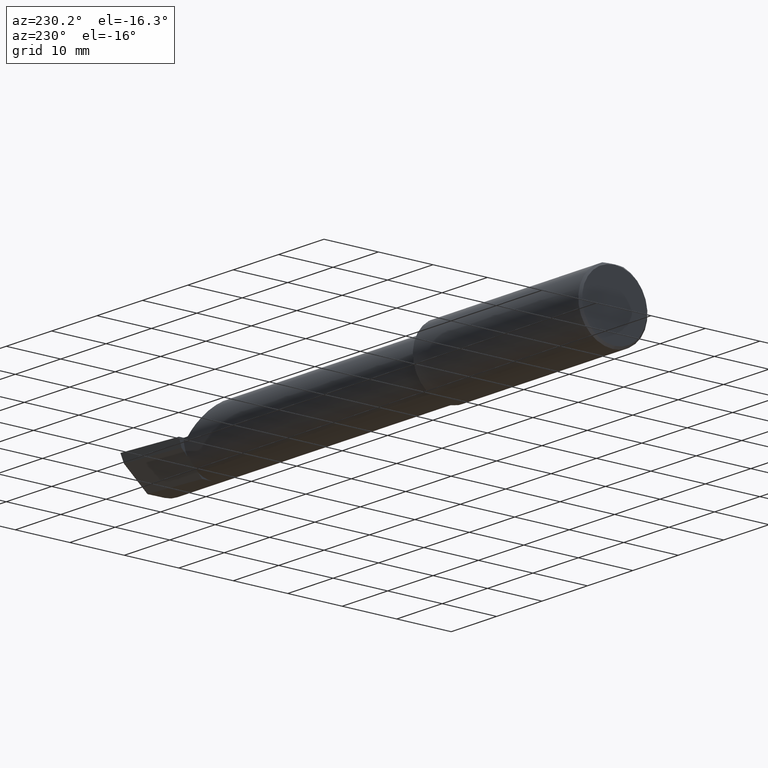
[diagram: clean part render]
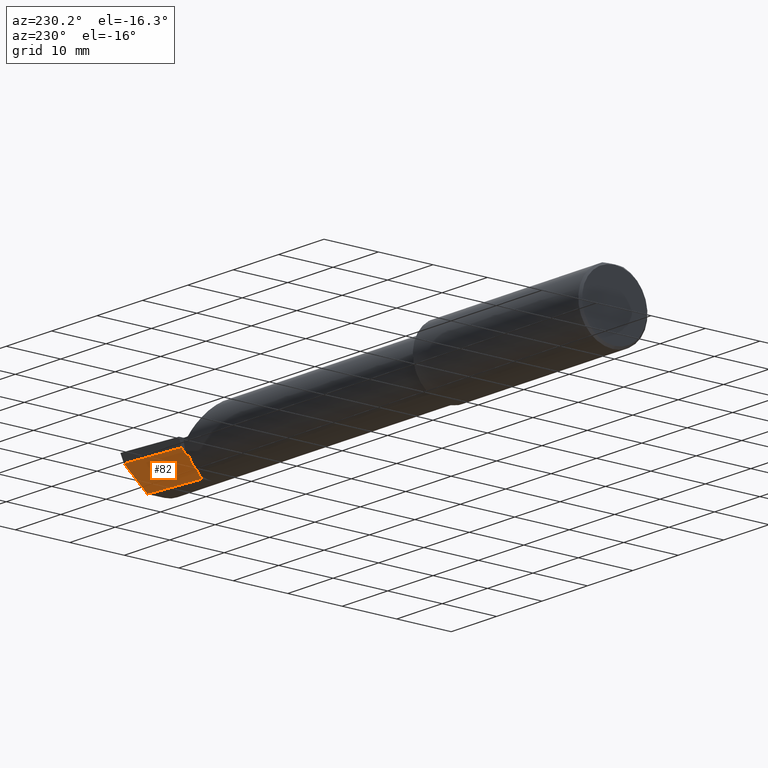
[diagram: same view with one face highlighted and labeled with its STEP entity id]
A machine part, auxiliary view. The second image highlights one B-rep face of the part: STEP entity #82.
In plain terms, the highlighted planar face has unit normal (0.0689, -0.716, 0.6947).
Its self-contained STEP definition (entity closure, byte-faithful):
#7 = EDGE_CURVE ( 'NONE', #620, #170, #791, .T. ) ;
#32 = EDGE_CURVE ( 'NONE', #614, #529, #135, .T. ) ;
#36 = VECTOR ( 'NONE', #251, 39.37007874015748143 ) ;
#62 = CARTESIAN_POINT ( 'NONE',  ( 3.536975816846328780, 0.1338694103809222047, -0.1025372660271281627 ) ) ;
#68 = EDGE_CURVE ( 'NONE', #529, #170, #543, .T. ) ;
#74 = CARTESIAN_POINT ( 'NONE',  ( 3.545000000000000373, 0.1328281892403430364, -0.1044069278527783584 ) ) ;
#75 = EDGE_CURVE ( 'NONE', #614, #156, #511, .T. ) ;
#76 = DIRECTION ( 'NONE',  ( 0.06894566448119619773, -0.7160281025913034503, 0.6946583704589934793 ) ) ;
#78 = FACE_OUTER_BOUND ( 'NONE', #674, .T. ) ;
#82 = ADVANCED_FACE ( 'NONE', ( #78 ), #495, .F. ) ;
#85 = CARTESIAN_POINT ( 'NONE',  ( 3.528944985009565993, 0.1743638780700111635, -0.06000000000000001166 ) ) ;
#135 = LINE ( 'NONE', #201, #36 ) ;
#149 = CARTESIAN_POINT ( 'NONE',  ( 3.528944985009565993, 0.1743638780700111635, -0.06000000000000001166 ) ) ;
#156 = VERTEX_POINT ( 'NONE', #186 ) ;
#158 = EDGE_CURVE ( 'NONE', #680, #156, #433, .T. ) ;
#163 = CARTESIAN_POINT ( 'NONE',  ( 3.528944985009565993, 0.1743638780700111635, -0.06000000000000001166 ) ) ;
#170 = VERTEX_POINT ( 'NONE', #524 ) ;
#172 = LINE ( 'NONE', #349, #559 ) ;
#179 = VECTOR ( 'NONE', #777, 39.37007874015748854 ) ;
#186 = CARTESIAN_POINT ( 'NONE',  ( 3.969369008890590855, 0.06819262280682616972, -0.2131499999999999506 ) ) ;
#189 = DIRECTION ( 'NONE',  ( -0.1053106618241661518, -0.6976485211320174740, -0.7086580314005233028 ) ) ;
#194 = CARTESIAN_POINT ( 'NONE',  ( 3.541916792879878262, 0.05627666367902792871, -0.1830073912696822680 ) ) ;
#198 = CARTESIAN_POINT ( 'NONE',  ( 3.544999999999999929, 0.05698775240724700958, -0.1825804393148460492 ) ) ;
#201 = CARTESIAN_POINT ( 'NONE',  ( 3.544999999999999929, 0.2148312740513258212, -0.01988118725737611503 ) ) ;
#216 = EDGE_CURVE ( 'NONE', #243, #680, #647, .T. ) ;
#227 = ORIENTED_EDGE ( 'NONE', *, *, #216, .T. ) ;
#243 = VERTEX_POINT ( 'NONE', #721 ) ;
#251 = DIRECTION ( 'NONE',  ( 0.000000000000000000, 0.6963153109074925462, 0.7177360153954948085 ) ) ;
#263 = ORIENTED_EDGE ( 'NONE', *, *, #329, .T. ) ;
#266 = CARTESIAN_POINT ( 'NONE',  ( 3.540349815208491790, 0.05592018782259830512, -0.1832193089843147382 ) ) ;
#306 = DIRECTION ( 'NONE',  ( 0.000000000000000000, 0.6963153109074925462, 0.7177360153954948085 ) ) ;
#307 = ORIENTED_EDGE ( 'NONE', *, *, #75, .F. ) ;
#318 = CARTESIAN_POINT ( 'NONE',  ( 3.988156289907357266, 0.07000163221415005299, -0.2131499999999999506 ) ) ;
#321 = DIRECTION ( 'NONE',  ( 0.000000000000000000, -0.6963153109074925462, -0.7177360153954948085 ) ) ;
#329 = EDGE_CURVE ( 'NONE', #368, #243, #172, .T. ) ;
#349 = CARTESIAN_POINT ( 'NONE',  ( 3.544999999999999929, 0.2148312740513258212, -0.01988118725737611503 ) ) ;
#354 = ORIENTED_EDGE ( 'NONE', *, *, #7, .F. ) ;
#355 = ORIENTED_EDGE ( 'NONE', *, *, #68, .T. ) ;
#356 = CARTESIAN_POINT ( 'NONE',  ( 3.545000000000000373, 0.1328281892403430364, -0.1044069278527783584 ) ) ;
#368 = VERTEX_POINT ( 'NONE', #356 ) ;
#370 = VECTOR ( 'NONE', #538, 39.37007874015748854 ) ;
#433 = LINE ( 'NONE', #691, #766 ) ;
#444 =( BOUNDED_CURVE ( )  B_SPLINE_CURVE ( 3, ( #743, #62, #563, #74 ),
 .UNSPECIFIED., .F., .T. ) 
 B_SPLINE_CURVE_WITH_KNOTS ( ( 4, 4 ),
 ( 2.868174658477177896, 2.883234730632702192 ),
 .UNSPECIFIED. ) 
 CURVE ( )  GEOMETRIC_REPRESENTATION_ITEM ( )  RATIONAL_B_SPLINE_CURVE ( ( 1.000000000000000000, 0.9999810996081960335, 0.9999810996081960335, 1.000000000000000000 ) ) 
 REPRESENTATION_ITEM ( '' )  );
#495 = PLANE ( 'NONE',  #782 ) ;
#511 = LINE ( 'NONE', #318, #564 ) ;
#524 = CARTESIAN_POINT ( 'NONE',  ( 3.540349815208491790, 0.05592018782259830512, -0.1832193089843147382 ) ) ;
#529 = VERTEX_POINT ( 'NONE', #198 ) ;
#538 = DIRECTION ( 'NONE',  ( 0.06658005426110603919, -0.6914603011188221737, -0.7193398003386548556 ) ) ;
#543 =( BOUNDED_CURVE ( )  B_SPLINE_CURVE ( 3, ( #700, #755, #194, #266 ),
 .UNSPECIFIED., .F., .T. ) 
 B_SPLINE_CURVE_WITH_KNOTS ( ( 4, 4 ),
 ( 3.399950576546886705, 3.405787439796291505 ),
 .UNSPECIFIED. ) 
 CURVE ( )  GEOMETRIC_REPRESENTATION_ITEM ( )  RATIONAL_B_SPLINE_CURVE ( ( 1.000000000000000000, 0.9999971609209656886, 0.9999971609209656886, 1.000000000000000000 ) ) 
 REPRESENTATION_ITEM ( '' )  );
#549 = ORIENTED_EDGE ( 'NONE', *, *, #32, .T. ) ;
#556 = ORIENTED_EDGE ( 'NONE', *, *, #158, .T. ) ;
#559 = VECTOR ( 'NONE', #306, 39.37007874015748143 ) ;
#563 = CARTESIAN_POINT ( 'NONE',  ( 3.541044210672214643, 0.1333523194825134983, -0.1034740570574036456 ) ) ;
#564 = VECTOR ( 'NONE', #750, 39.37007874015748854 ) ;
#591 = CARTESIAN_POINT ( 'NONE',  ( 3.532795049205047722, 0.1343794326159069574, -0.1015966078791044752 ) ) ;
#609 = CARTESIAN_POINT ( 'NONE',  ( 3.544999999999999929, 0.02733053485622427906, -0.2131499999999999506 ) ) ;
#614 = VERTEX_POINT ( 'NONE', #609 ) ;
#620 = VERTEX_POINT ( 'NONE', #591 ) ;
#647 = LINE ( 'NONE', #149, #179 ) ;
#659 = CARTESIAN_POINT ( 'NONE',  ( 3.992127980275557597, 0.2189633278254520532, -0.06000000000000001166 ) ) ;
#674 = EDGE_LOOP ( 'NONE', ( #227, #556, #307, #549, #355, #354, #737, #263 ) ) ;
#680 = VERTEX_POINT ( 'NONE', #659 ) ;
#691 = CARTESIAN_POINT ( 'NONE',  ( 3.983714411583731518, 0.1632262006094490903, -0.1166167083458043846 ) ) ;
#700 = CARTESIAN_POINT ( 'NONE',  ( 3.544999999999999929, 0.05698775240724700958, -0.1825804393148460492 ) ) ;
#721 = CARTESIAN_POINT ( 'NONE',  ( 3.544999999999999929, 0.1759098001822370638, -0.06000000000000001166 ) ) ;
#737 = ORIENTED_EDGE ( 'NONE', *, *, #773, .T. ) ;
#743 = CARTESIAN_POINT ( 'NONE',  ( 3.532795049205047722, 0.1343794326159069574, -0.1015966078791044752 ) ) ;
#750 = DIRECTION ( 'NONE',  ( 0.9953961983671800740, 0.09584575252021027003, -1.516874858616837700E-17 ) ) ;
#755 = CARTESIAN_POINT ( 'NONE',  ( 3.543466858877806214, 0.05663251955088037526, -0.1827944341085903923 ) ) ;
#766 = VECTOR ( 'NONE', #189, 39.37007874015748143 ) ;
#773 = EDGE_CURVE ( 'NONE', #620, #368, #444, .T. ) ;
#777 = DIRECTION ( 'NONE',  ( 0.9953961983671800740, 0.09584575252021028391, -0.000000000000000000 ) ) ;
#782 = AXIS2_PLACEMENT_3D ( 'NONE', #85, #76, #321 ) ;
#791 = LINE ( 'NONE', #163, #370 ) ;